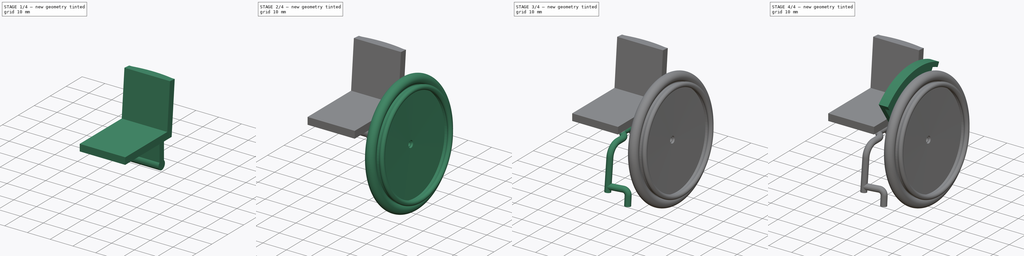
[diagram: build sequence overview — one tinted view per stage of 4, left to right]
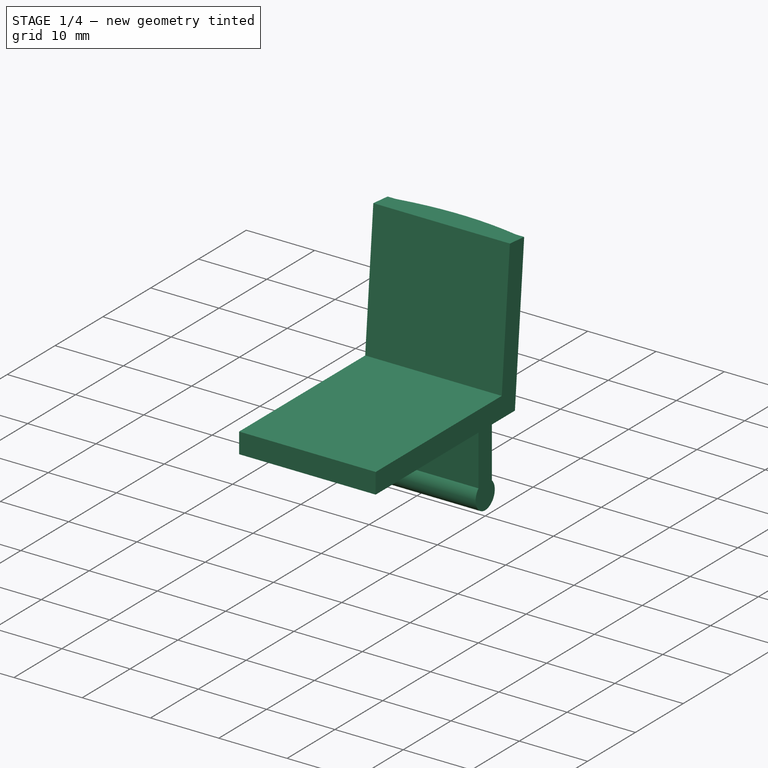
[diagram: stage 1 of 4 — iso view after this stage's code; geometry added in this stage tinted green]
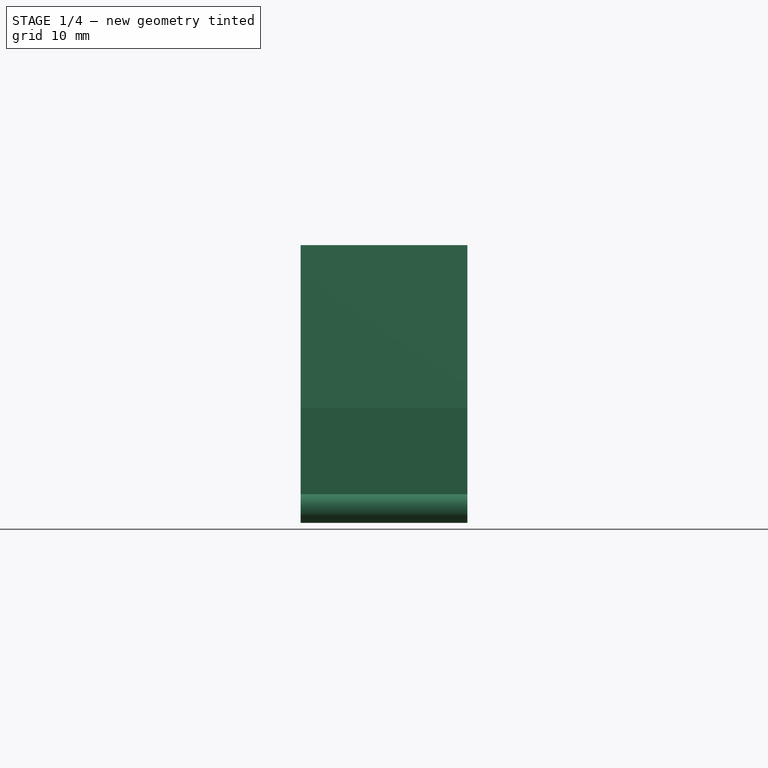
[diagram: stage 1 of 4 — front view after this stage's code; geometry added in this stage tinted green]
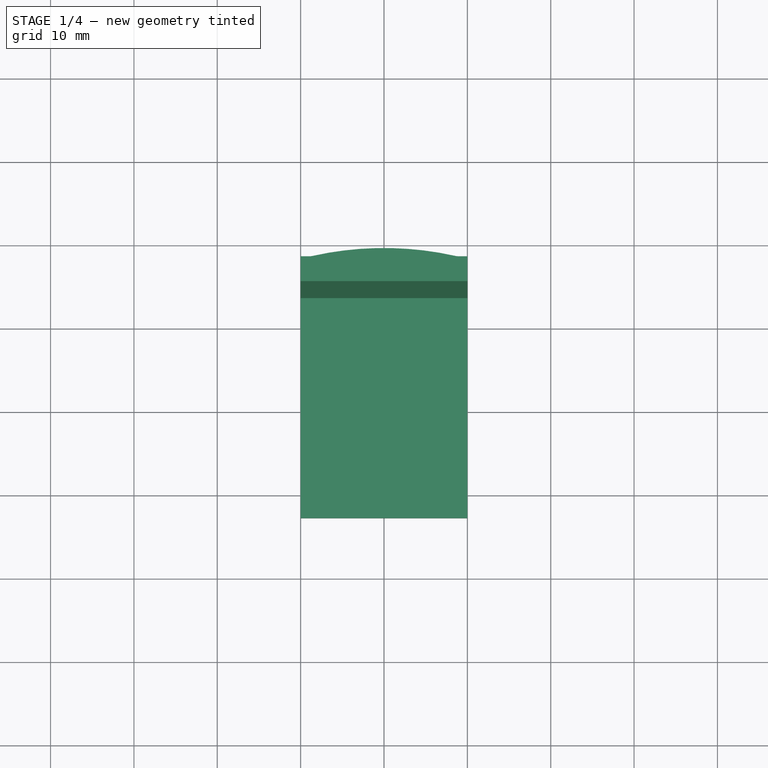
[diagram: stage 1 of 4 — top view after this stage's code; geometry added in this stage tinted green]
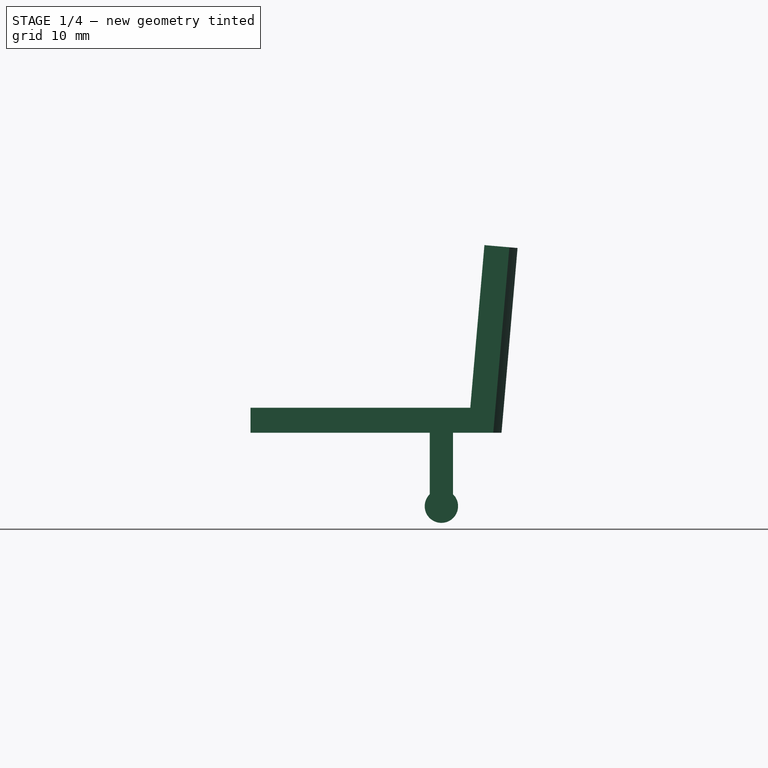
[diagram: stage 1 of 4 — right view after this stage's code; geometry added in this stage tinted green]
FCSTD DOCUMENT  (FreeCAD 2021.0205R23662 +3201 (Git))
Label: ToyWheelchair_02
License: All rights reserved
LicenseURL: http://en.wikipedia.org/wiki/All_rights_reserved
objects: Sketcher::SketchObject×15, PartDesign::Plane×8, PartDesign::Body×5, PartDesign::Pad×5, PartDesign::ShapeBinder×4, PartDesign::AdditivePipe×3, PartDesign::Revolution×1, Spreadsheet::Sheet×1, PartDesign::Point×1
note: 60 computed .brp shape members not serialized (recipe doc carries the construction recipe); baked Part::Feature solids carry a one-line shape summary decoded from their .brp

FEATURE [Spreadsheet::Sheet] Spreadsheet
  PythonMode = false
  cells = A1=SeatWidth; B1(SeatWidth)==20mm; A2=WheelDiameter; B2(WheelDiameter)==50mm; A3=TireDiameter; B3(TireDiameter)==2mm; A4=SeatHeight; B4(SeatHeight)==40mm; A5=WheelAngle; B5(WheelAngle)==5deg; A6=SeatAngle; B6(SeatAngle)==5deg; A7=TubeDiameter; B7(TubeDiameter)==2.5mm; A8=TubeCurveOffset; B8(TubeCurveOffset)==3mm; A9=AxleDiameter; B9(AxleDiameter)==4mm
FEATURE [PartDesign::ShapeBinder] ShapeBinder002
  Placement = pos=(0,0,0) rot=(0.57735,0.57735,0.57735;2.0944rad)
  Support = -> [Sketch]
  TraceSupport = false
FEATURE [Sketcher::SketchObject] Sketch005
  ExternalGeometry = -> [ShapeBinder002]
  FullyConstrained = false
  MapMode = 5
  Placement = pos=(0,0,0) rot=(0.57735,0.57735,0.57735;2.0944rad)
  Support = -> [YZ_Plane003]
  sketch-geometry (11):
    g0: ArcOfCircle CenterX=-5.5e-15 CenterY=24.9049 CenterZ=0 NormalX=0 NormalY=0 NormalZ=1 AngleXU=0 Radius=2 StartAngle=2.34619 EndAngle=7.07858
    g1: LineSegment StartX=6.47551 StartY=36.7159 StartZ=0 EndX=6.2142 EndY=33.7159 EndZ=0
    g2: LineSegment StartX=6.2142 StartY=33.7159 StartZ=0 EndX=1.4 EndY=33.7159 EndZ=0
    g3: LineSegment StartX=-22.9045 StartY=33.7159 StartZ=0 EndX=-22.9045 EndY=36.7159 EndZ=0
    g4: LineSegment StartX=1.4 StartY=26.3332 StartZ=0 EndX=1.4 EndY=33.7159 EndZ=0
    g5: LineSegment StartX=-1.4 StartY=26.3332 StartZ=0 EndX=-1.4 EndY=33.7159 EndZ=0
    g6: LineSegment StartX=-1.4 StartY=33.7159 StartZ=0 EndX=-22.9045 EndY=33.7159 EndZ=0
    g7: LineSegment StartX=-22.9045 StartY=36.7159 StartZ=0 EndX=3.46416 EndY=36.7159 EndZ=0
    g8: LineSegment StartX=6.47551 StartY=36.7159 StartZ=0 EndX=8.15211 EndY=55.9642 EndZ=0
    g9: LineSegment StartX=8.15211 StartY=55.9642 StartZ=0 EndX=5.16342 EndY=56.2245 EndZ=0
    g10: LineSegment StartX=5.16342 StartY=56.2245 StartZ=0 EndX=3.46416 EndY=36.7159 EndZ=0
  constraints (27):
    c: Coincident(g0,g-3)
    c: Symmetric(g0,g0,g-2)
    c: Diameter(g0) = 4
    c: DistanceX(g0,g0) = 2.8
    c: Coincident(g1,g2)
    c: Horizontal(g2)
    c: Coincident(g6,g3)
    c: Vertical(g3)
    c: Coincident(g4,g0)
    c: Vertical(g4)
    c: Coincident(g5,g0)
    c: Vertical(g5)
    c: Coincident(g2,g4)
    c: Coincident(g6,g5)
    c: Tangent(g2,g6)
    c: DistanceY(g1,g1) = 3
    c: Coincident(g7,g3)
    c: Horizontal(g7)
    c: Coincident(g8,g1)
    c: Coincident(g9,g8)
    c: Coincident(g10,g9)
    c: Coincident(g7,g10)
    c: DistanceY(g3,g3) = 3
    c: Equal(g3,g9)
    c: Perpendicular(g10,g9)
    c: Perpendicular(g8,g9)
    c: Parallel(g8,g1)
FEATURE [PartDesign::Pad] Pad001
  ClaimChildren = false
  Direction = (1,1,1)
  Fit = 0
  FitJoin = 0
  InnerFit = 0
  InnerFitJoin = 0
  InnerTaperAngle = 0
  InnerTaperAngleRev = 0
  Length = 20
  Length2 = 100
  Midplane = true
  NewSolid = false
  Placement = pos=(0,0,0) rot=(0.57735,0.57735,0.57735;2.0944rad)
  Profile = -> Sketch005
  Suppress = false
  Type = 0
  expr: Length = Spreadsheet.SeatWidth
FEATURE [PartDesign::Body] Body004  label="Body.Tube"
  AutoGroupSolids = false
  ExportMode = 0
  Group = -> [DatumPlane001,ShapeBinder003,Sketch006,DatumPlane002,DatumPlane003,Sketch007,Sketch008,AdditivePipe,DatumPlane004,Sketch010,DatumPoint,DatumPlane005,Sketch011,DatumPlane006,Sketch012,AdditivePipe001,AdditivePipe002]
  Origin = -> Origin004
  Tip = -> AdditivePipe002
  _ExportChildren = -> [DatumPlane001,ShapeBinder003,DatumPlane002,DatumPlane003,AdditivePipe,DatumPlane004,Sketch010,DatumPoint,DatumPlane005,DatumPlane006,AdditivePipe001,AdditivePipe002]
  _GroupVersion = 1
FEATURE [Sketcher::SketchObject] Sketch013
  ExternalGeometry = -> [Pad001]
  FullyConstrained = true
  MapMode = 5
  Placement = pos=(-1.97e-14,4.89935,56.2475) rot=(-0.043388,-0.043388,-0.998116;1.57268rad)
  Support = -> [Pad001]
  sketch-geometry (13):
    g0: LineSegment StartX=-3.26507 StartY=10 StartZ=0 EndX=-3.26507 EndY=9 EndZ=0
    g1: ArcOfCircle CenterX=-5.26507 CenterY=8.99998 CenterZ=0 NormalX=0 NormalY=0 NormalZ=1 AngleXU=0 Radius=2 StartAngle=6.06187 EndAngle=6.28319
    g2: LineSegment StartX=-3.26507 StartY=-10 StartZ=0 EndX=-3.26507 EndY=-9 EndZ=0
    g3: ArcOfCircle CenterX=-5.26507 CenterY=-9 CenterZ=0 NormalX=0 NormalY=0 NormalZ=1 AngleXU=0 Radius=2 StartAngle=2.00064e-08 EndAngle=0.221313
    g4: ArcOfCircle CenterX=34.7348 CenterY=-9.2494e-06 CenterZ=0 NormalX=0 NormalY=0 NormalZ=1 AngleXU=0 Radius=38.9999 StartAngle=2.92028 EndAngle=3.36291
    g5: GeomPoint [constr] X=-4.26507 Y=0 Z=0
    g6: GeomPoint [constr] X=-3.26507 Y=0 Z=0
    g7: Circle [constr] CenterX=-3.26507 CenterY=-10 CenterZ=0 NormalX=0 NormalY=0 NormalZ=1 AngleXU=0 Radius=1
    g8: Circle [constr] CenterX=-0.265068 CenterY=-10 CenterZ=0 NormalX=0 NormalY=0 NormalZ=1 AngleXU=0 Radius=1
    g9: BSplineCurve PolesCount=2 KnotsCount=2 Degree=1 IsPeriodic=0
    g10: GeomPoint [constr] X=-3.26507 Y=-10 Z=0
    g11: GeomPoint [constr] X=-0.265068 Y=-10 Z=0
    g12: LineSegment StartX=-3.26507 StartY=10 StartZ=0 EndX=-0.265068 EndY=10 EndZ=0
  constraints (31):
    c: Coincident(g0,g-4)
    c: PointOnObject(g0,g-4)
    c: Coincident(g1,g0)
    c: Tangent(g0,g1)
    c: Coincident(g2,g-4)
    c: PointOnObject(g2,g-4)
    c: Coincident(g3,g2)
    c: Tangent(g3,g-4)
    c: Coincident(g4,g3)
    c: Coincident(g4,g1)
    c: Distance(g0,g0) = 1
    c: Equal(g2,g0)
    c: Equal(g1,g3)
    c: Tangent(g4,g1)
    c: Tangent(g3,g4)
    c: Radius(g3) = 2
    c: PointOnObject(g5,g-1)
    c: PointOnObject(g5,g4)
    c: PointOnObject(g6,g-1)
    c: PointOnObject(g6,g-4)
    c: Distance(g6,g5) = 1
    c: Coincident(g9,g2)
    c: Weight(g7) = 1
    c: Equal(g7,g8)
    c: InternalAlignment(g7,g9)
    c: InternalAlignment(g8,g9)
    c: InternalAlignment(g10,g9)
    c: InternalAlignment(g11,g9)
    c: Coincident(g12,g0)
    c: Coincident(g12,g-3)
    c: Coincident(g9,g-3)
FEATURE [PartDesign::Pad] Pad003
  BaseFeature = -> Pad001
  ClaimChildren = false
  Direction = (1,1,1)
  Fit = 0
  FitJoin = 0
  InnerFit = 0
  InnerFitJoin = 0
  InnerTaperAngle = 0
  InnerTaperAngleRev = 0
  Length = 10
  Length2 = 100
  NewSolid = false
  Placement = pos=(0,0,0) rot=(0.57735,0.57735,0.57735;2.0944rad)
  Profile = -> Sketch013
  Suppress = false
  Type = 3
  UpToFace = -> Pad001 [Face3]
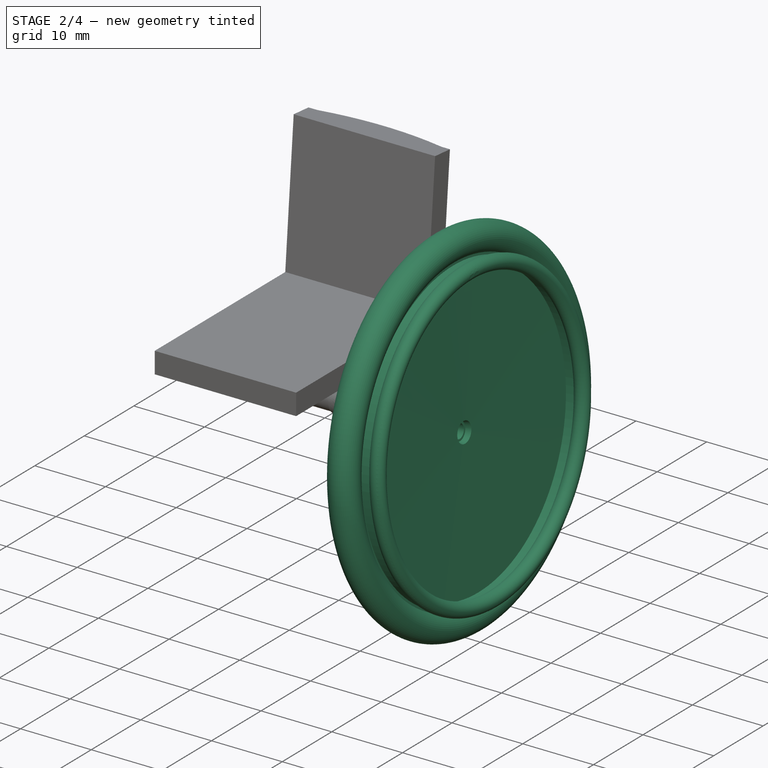
[diagram: stage 2 of 4 — iso view after this stage's code; geometry added in this stage tinted green]
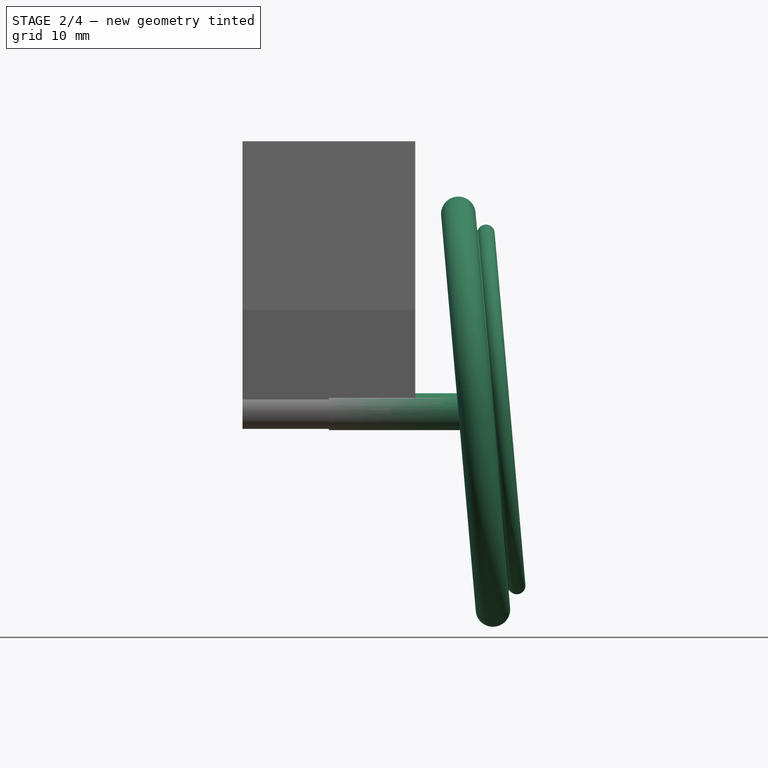
[diagram: stage 2 of 4 — front view after this stage's code; geometry added in this stage tinted green]
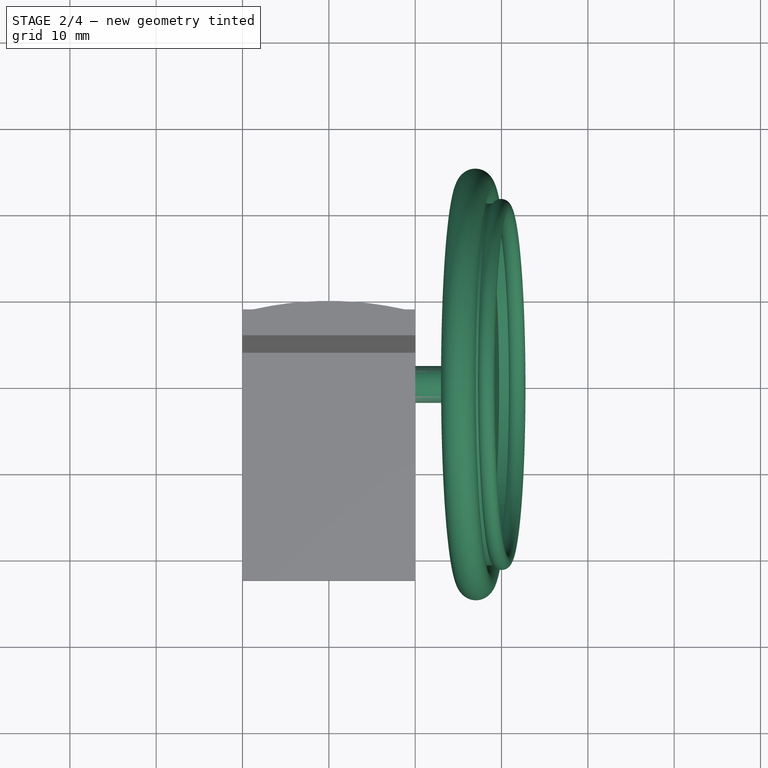
[diagram: stage 2 of 4 — top view after this stage's code; geometry added in this stage tinted green]
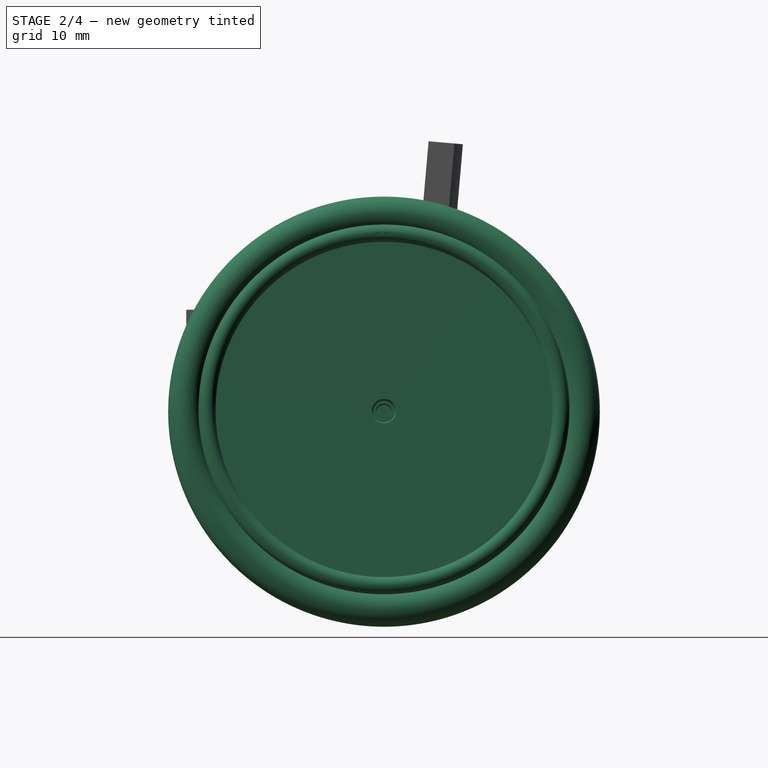
[diagram: stage 2 of 4 — right view after this stage's code; geometry added in this stage tinted green]
FEATURE [PartDesign::ShapeBinder] ShapeBinder001
  Placement = pos=(0,0,0) rot=(1,0,0;1.5708rad)
  Support = -> [Sketch001]
  TraceSupport = false
FEATURE [Sketcher::SketchObject] Sketch003
  ExternalGeometry = -> [ShapeBinder001]
  FullyConstrained = false
  MapMode = 5
  Placement = pos=(0,0,0) rot=(1,0,0;1.5708rad)
  Support = -> [XZ_Plane002]
  sketch-geometry (20):
    g0: Circle [constr] CenterX=17 CenterY=24.9049 CenterZ=0 NormalX=0 NormalY=0 NormalZ=1 AngleXU=0 Radius=25
    g1: ArcOfCircle CenterX=14.9954 CenterY=47.8173 CenterZ=0 NormalX=0 NormalY=0 NormalZ=1 AngleXU=0 Radius=2 StartAngle=5.32325 EndAngle=10.5592
    g2: LineSegment StartX=15.3663 StartY=26.368 StartZ=0 EndX=16.1134 EndY=26.4334 EndZ=0
    g3: LineSegment [constr] StartX=18.3548 StartY=26.6295 StartZ=0 EndX=18.4943 EndY=25.0356 EndZ=0
    g4: LineSegment [constr] StartX=18.4943 StartY=25.0356 StartZ=0 EndX=15.5057 EndY=24.7741 EndZ=0
    g5: LineSegment [constr] StartX=15.5057 StartY=24.7741 StartZ=0 EndX=15.3663 EndY=26.368 EndZ=0
    g6: LineSegment StartX=16.1426 StartY=46.179 StartZ=0 EndX=16.1661 EndY=45.8642 EndZ=0
    g7: LineSegment StartX=14.1502 StartY=46.0047 StartZ=0 EndX=16.1134 EndY=26.4334 EndZ=0
    g8: ArcOfCircle CenterX=18.2028 CenterY=45.5778 CenterZ=0 NormalX=0 NormalY=0 NormalZ=1 AngleXU=0 Radius=1 StartAngle=3.71006 EndAngle=9.03084
    g9: LineSegment [constr] StartX=18.2028 StartY=45.5778 StartZ=0 EndX=15.2142 EndY=45.3163 EndZ=0
    g10: LineSegment StartX=17.2794 StartY=45.9616 StartZ=0 EndX=16.1661 EndY=45.8642 EndZ=0
    g11: LineSegment StartX=17.3601 StartY=45.0395 StartZ=0 EndX=16.235 EndY=44.941 EndZ=0
    g12: LineSegment StartX=16.235 StartY=44.941 StartZ=0 EndX=17.6077 EndY=26.5641 EndZ=0
    g13: LineSegment [constr] StartX=16.1661 StartY=45.8642 StartZ=0 EndX=16.235 EndY=44.941 EndZ=0
    g14: LineSegment StartX=16.8909 StartY=26.1514 StartZ=0 EndX=16.916 EndY=25.8649 EndZ=0
    g15: LineSegment StartX=16.916 StartY=25.8649 StartZ=0 EndX=15.4261 EndY=25.6845 EndZ=0
    g16: LineSegment StartX=15.4261 StartY=25.6845 StartZ=0 EndX=15.3663 EndY=26.368 EndZ=0
    g17: LineSegment StartX=16.8909 StartY=26.1514 StartZ=0 EndX=17.6214 EndY=26.3806 EndZ=0
    g18: LineSegment StartX=17.6077 StartY=26.5641 StartZ=0 EndX=17.6214 EndY=26.3806 EndZ=0
    g19: LineSegment [constr] StartX=15.3663 StartY=26.368 StartZ=0 EndX=18.3548 EndY=26.6295 EndZ=0
  constraints (54):
    c: PointOnObject(g0,g-3)
    c: PointOnObject(g-3,g0)
    c: PointOnObject(g-3,g0)
    c: PointOnObject(g-3,g1)
    c: Coincident(g3,g4)
    c: Coincident(g4,g5)
    c: Coincident(g5,g2)
    c: PointOnObject(g0,g4)
    c: Perpendicular(g5,g4)
    c: Perpendicular(g-3,g4)
    c: Perpendicular(g3,g4)
    c: Symmetric(g2,g3,g-3)
    c: Symmetric(g7,g12,g-3)
    c: Symmetric(g6,g7,g-3)
    c: Coincident(g1,g6)
    c: Coincident(g1,g7)
    c: PointOnObject(g2,g7)
    c: Diameter(g1) = 4
    c: Distance(g1,g1) = 2
    c: Distance(g2,g12) = 1.5
    c: Distance(g2,g3) = 3
    c: Distance(g3) = 1.6
    c: Diameter(g8) = 2
    c: Coincident(g9,g8)
    c: PointOnObject(g9,g-3)
    c: Perpendicular(g-3,g9)
    c: Distance(g9) = 3
    c: Parallel(g9,g10)
    c: Parallel(g9,g11)
    c: Symmetric(g11,g10,g9)
    c: Coincident(g8,g10)
    c: PointOnObject(g8,g11)
    c: Coincident(g12,g11)
    c: Tangent(g6,g12)
    c: Coincident(g6,g10)
    c: Coincident(g13,g6)
    c: Coincident(g13,g11)
    c: PointOnObject(g14,g-3)
    c: PointOnObject(g14,g-3)
    c: Coincident(g14,g15)
    c: PointOnObject(g15,g5)
    c: Coincident(g15,g16)
    c: Coincident(g16,g2)
    c: Distance(g4,g15) = 0.913816
    c: Distance(g14,g0) = 0.963725
    c: Distance(g0,g14) = 1.25134
    c: Coincident(g17,g14)
    c: Coincident(g18,g12)
    c: Coincident(g18,g17)
    c: Parallel(g12,g18)
    c: Coincident(g19,g2)
    c: Coincident(g19,g3)
    c: PointOnObject(g12,g19)
    c: PointOnObject(g2,g19)
FEATURE [Sketcher::SketchObject] Sketch004
  ExternalGeometry = -> [ShapeBinder001]
  FullyConstrained = true
  MapMode = 5
  Placement = pos=(0,0,0) rot=(1,0,0;1.5708rad)
  Support = -> [XZ_Plane002]
  sketch-geometry (3):
    g0: Circle [constr] CenterX=17 CenterY=24.9049 CenterZ=0 NormalX=0 NormalY=0 NormalZ=1 AngleXU=0 Radius=25
    g1: LineSegment StartX=17 StartY=24.9049 StartZ=0 EndX=41.9049 EndY=27.0838 EndZ=0
    g2: LineSegment StartX=17 StartY=24.9049 StartZ=0 EndX=-7.90487 EndY=22.726 EndZ=0
  constraints (9):
    c: PointOnObject(g0,g-3)
    c: PointOnObject(g-3,g0)
    c: PointOnObject(g-3,g0)
    c: Coincident(g1,g0)
    c: PointOnObject(g1,g0)
    c: Perpendicular(g-3,g1)
    c: Coincident(g2,g1)
    c: PointOnObject(g2,g0)
    c: Parallel(g1,g2)
FEATURE [PartDesign::Revolution] Revolution
  Angle = 360
  Axis = (0.996195,0,0.0871557)
  Base = (17,-5.5e-15,24.9049)
  ClaimChildren = false
  Fit = 0
  FitJoin = 0
  InnerFit = 0
  InnerFitJoin = 0
  NewSolid = false
  Placement = pos=(0,0,0) rot=(1,0,0;1.5708rad)
  Profile = -> Sketch003
  ReferenceAxis = -> Sketch004 [Edge2]
  Reversed = true
  Suppress = false
FEATURE [PartDesign::Plane] DatumPlane007
  Length = 50.4782
  MapMode = 5
  MinimumLength = 10
  MinimumWidth = 10
  Placement = pos=(17.5389,-3e-16,1.53446) rot=(0.737277,0,-0.67559;3.14159rad)
  ResizeMode = 0
  Support = -> [Revolution]
  Width = 49.9872
FEATURE [PartDesign::Body] Body002  label="Body.Wheel"
  AutoGroupSolids = false
  ExportMode = 0
  Group = -> [ShapeBinder001,Sketch003,Sketch004,Revolution,DatumPlane007]
  Origin = -> Origin002
  Tip = -> Revolution
  _ExportChildren = -> [ShapeBinder001,Sketch004,Revolution,DatumPlane007]
  _GroupVersion = 1
FEATURE [Sketcher::SketchObject] Sketch014
  ExternalGeometry = -> [ShapeBinder002]
  FullyConstrained = true
  MapMode = 5
  Placement = pos=(0,0,0) rot=(0.57735,0.57735,0.57735;2.0944rad)
  Support = -> [YZ_Plane003]
  expr: Constraints[1] = Spreadsheet.AxleDiameter
  sketch-geometry (1):
    g0: Circle CenterX=0 CenterY=24.9049 CenterZ=0 NormalX=0 NormalY=0 NormalZ=1 AngleXU=0 Radius=2
  constraints (2):
    c: Coincident(g0,g-3)
    c: Diameter(g0) = 4
FEATURE [PartDesign::Pad] Pad004
  BaseFeature = -> Pad003
  ClaimChildren = false
  Direction = (1,1,1)
  Fit = 0
  FitJoin = 0
  InnerFit = 0
  InnerFitJoin = 0
  InnerTaperAngle = 0
  InnerTaperAngleRev = 0
  Length = 10
  Length2 = 100
  NewSolid = false
  Placement = pos=(0,0,0) rot=(0.57735,0.57735,0.57735;2.0944rad)
  Profile = -> Sketch014
  Suppress = false
  Type = 3
  UpToFace = -> Sketch014
FEATURE [PartDesign::Body] Body003  label="Body.AxleSeat"
  AutoGroupSolids = false
  ExportMode = 0
  Group = -> [ShapeBinder002,Sketch005,Pad001,Sketch013,Pad003,Sketch014,Pad004]
  Origin = -> Origin003
  Tip = -> Pad004
  _ExportChildren = -> [ShapeBinder002,Pad001,Pad003,Pad004]
  _GroupVersion = 1
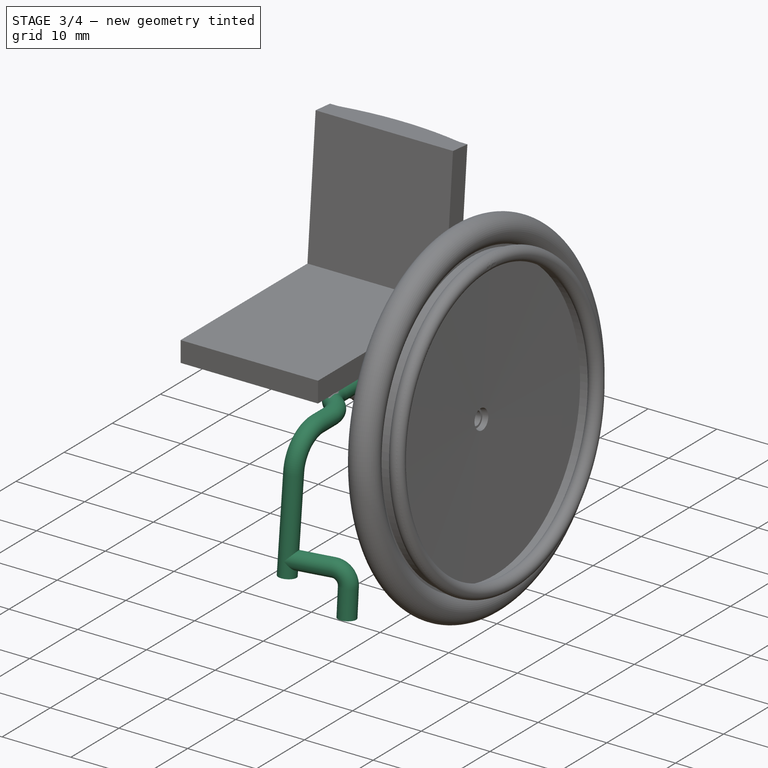
[diagram: stage 3 of 4 — iso view after this stage's code; geometry added in this stage tinted green]
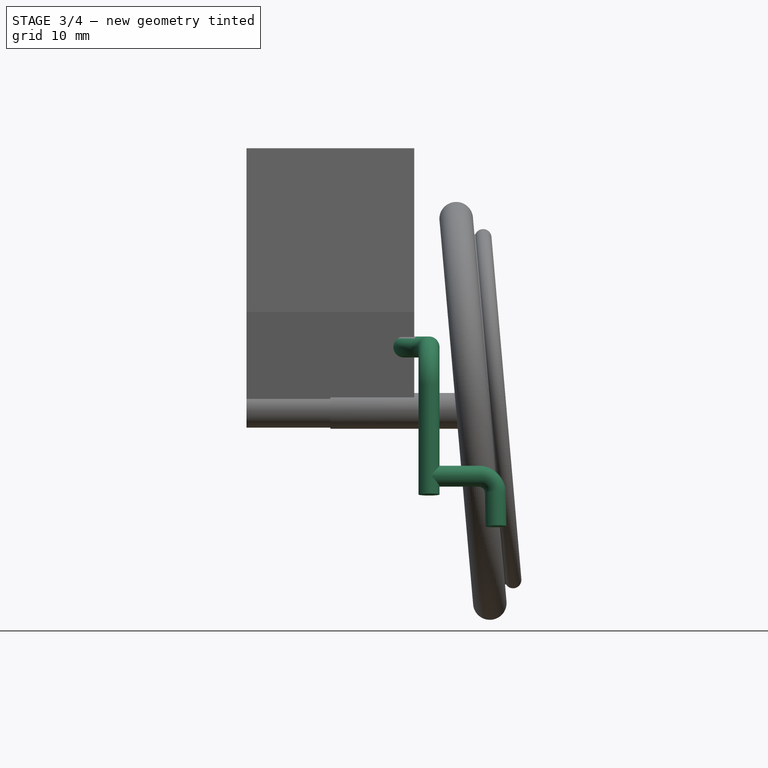
[diagram: stage 3 of 4 — front view after this stage's code; geometry added in this stage tinted green]
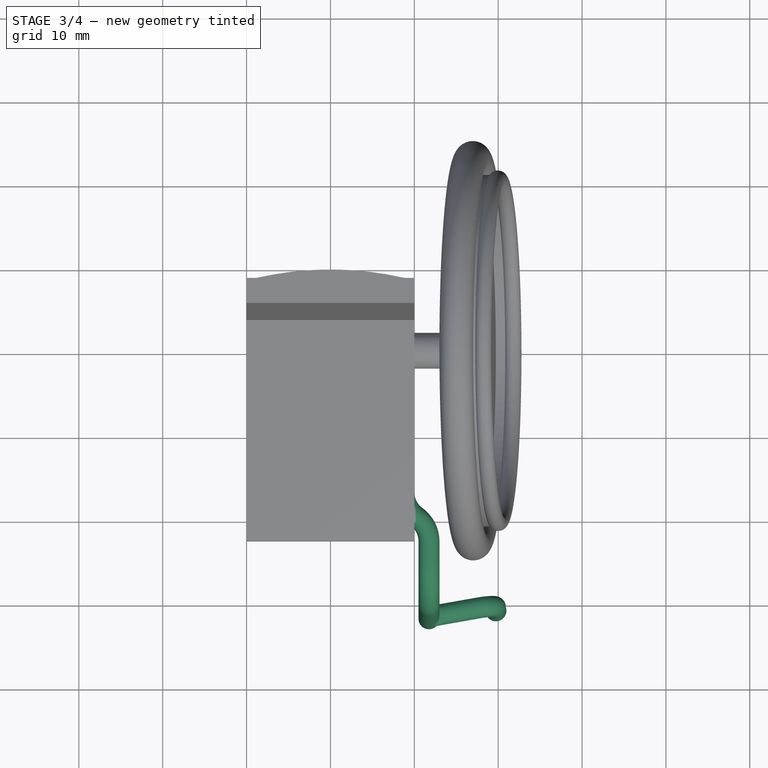
[diagram: stage 3 of 4 — top view after this stage's code; geometry added in this stage tinted green]
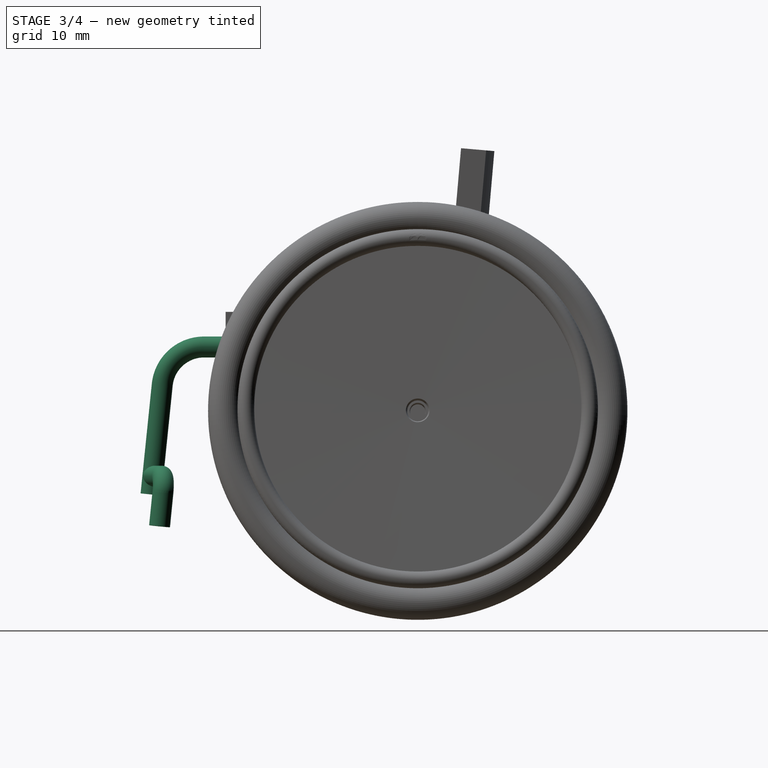
[diagram: stage 3 of 4 — right view after this stage's code; geometry added in this stage tinted green]
FEATURE [PartDesign::Body] Body001  label="Body.SidePanel"
  AutoGroupSolids = false
  ExportMode = 0
  Group = -> [ShapeBinder,DatumPlane,Sketch002,Pad,Sketch009,Pad002]
  Origin = -> Origin001
  Tip = -> Pad002
  _ExportChildren = -> [ShapeBinder,DatumPlane,Pad,Pad002]
  _GroupVersion = 1
FEATURE [PartDesign::Plane] DatumPlane004
  Length = 11.75
  MapMode = 1
  MinimumLength = 10
  MinimumWidth = 10
  Placement = pos=(11.75,-31.5781,17.1179) rot=(0,0,1;0rad)
  ResizeMode = 0
  Support = -> [Sketch006]
  Width = 31.5781
FEATURE [Sketcher::SketchObject] Sketch010
  FullyConstrained = true
  MapMode = 5
  Placement = pos=(11.75,-31.5781,17.1179) rot=(0,0,1;0rad)
  Support = -> [DatumPlane004]
  sketch-geometry (1):
    g0: LineSegment StartX=0 StartY=0 StartZ=0 EndX=4.92404 EndY=0.868241 EndZ=0
  constraints (3):
    c: Coincident(g0,g-1)
    c: Angle(g-1,g0) = 0.174533
    c: Distance(g0) = 5
FEATURE [PartDesign::Point] DatumPoint
  AttacherType = Attacher::AttachEnginePoint
  MapMode = 37
  Placement = pos=(11.75,-31.5781,17.1179) rot=(0,0,1;0rad)
  Support = -> [Sketch006]
FEATURE [PartDesign::Plane] DatumPlane005
  Length = 17.055
  MapMode = 13
  MinimumLength = 10
  MinimumWidth = 10
  Placement = pos=(13.3913,-30.916,20.7556) rot=(0.991599,0.086754,0.095947;1.47864rad)
  ResizeMode = 0
  Support = -> [Sketch010,Sketch006]
  Width = 20.6876
FEATURE [Sketcher::SketchObject] Sketch011
  ExternalGeometry = -> [Sketch010]
  FullyConstrained = true
  MapMode = 5
  Placement = pos=(13.3913,-30.916,20.7556) rot=(0.991599,0.086754,0.095947;1.47864rad)
  Support = -> [DatumPlane005]
  sketch-geometry (3):
    g0: LineSegment StartX=-1.73138 StartY=-3.65616 StartZ=0 EndX=4.26863 EndY=-3.65616 EndZ=0
    g1: LineSegment StartX=6.26862 StartY=-5.65616 StartZ=0 EndX=6.26862 EndY=-9.65616 EndZ=0
    g2: ArcOfCircle CenterX=4.26862 CenterY=-5.65616 CenterZ=0 NormalX=0 NormalY=0 NormalZ=1 AngleXU=0 Radius=2 StartAngle=4.27302e-08 EndAngle=1.57079
  constraints (10):
    c: Coincident(g0,g-3)
    c: PointOnObject(g0,g-3)
    c: Vertical(g1)
    c: Coincident(g2,g0)
    c: Coincident(g2,g1)
    c: Tangent(g2,g1)
    c: Radius(g2) = 2
    c: DistanceY(g1,g0) = 6
    c: DistanceX(g0,g1) = 8
    c: Tangent(g2,g0)
FEATURE [PartDesign::Plane] DatumPlane006
  Length = 10
  MapMode = 7
  MinimumLength = 10
  MinimumWidth = 10
  Placement = pos=(11.75,-31.5781,17.1179) rot=(0.6444,-0.540716,-0.540716;1.99673rad)
  ResizeMode = 0
  Support = -> [Sketch010]
  Width = 10
FEATURE [Sketcher::SketchObject] Sketch012
  FullyConstrained = true
  MapMode = 5
  Placement = pos=(11.75,-31.5781,17.1179) rot=(0.6444,-0.540716,-0.540716;1.99673rad)
  Support = -> [DatumPlane006]
  expr: Constraints[1] = Spreadsheet.TubeDiameter
  sketch-geometry (1):
    g0: Circle CenterX=0 CenterY=0 CenterZ=0 NormalX=0 NormalY=0 NormalZ=1 AngleXU=0 Radius=1.25
  constraints (2):
    c: Coincident(g0,g-1)
    c: Diameter(g0) = 2.5
FEATURE [PartDesign::AdditivePipe] AdditivePipe
  AuxilleryCurvelinear = true
  AuxillerySpineTangent = false
  Binormal = (0,0,0)
  ClaimChildren = false
  Fit = 0
  FitJoin = 0
  InnerFit = 0
  InnerFitJoin = 0
  Mode = 0
  NewSolid = false
  Placement = pos=(11.75,-23.8778,32.5214) rot=(0.57735,-0.57735,0.57735;2.0944rad)
  Profile = -> Sketch007
  Spine = -> Sketch008 [Edge1,Edge2,Edge3,Edge4]
  SpineTangent = false
  Suppress = false
  Transformation = 0
  Transition = 0
FEATURE [PartDesign::AdditivePipe] AdditivePipe001
  AuxilleryCurvelinear = true
  AuxillerySpineTangent = false
  BaseFeature = -> AdditivePipe
  Binormal = (0,0,0)
  ClaimChildren = false
  Fit = 0
  FitJoin = 0
  InnerFit = 0
  InnerFitJoin = 0
  Mode = 0
  NewSolid = false
  Placement = pos=(11.75,-23.8778,32.5214) rot=(0.57735,-0.57735,0.57735;2.0944rad)
  Profile = -> Sketch007
  Spine = -> Sketch006 [Edge4,Edge3,Edge2,Edge1]
  SpineTangent = false
  Suppress = false
  Transformation = 0
  Transition = 0
FEATURE [PartDesign::AdditivePipe] AdditivePipe002
  AuxilleryCurvelinear = true
  AuxillerySpineTangent = false
  BaseFeature = -> AdditivePipe001
  Binormal = (0,0,0)
  ClaimChildren = false
  Fit = 0
  FitJoin = 0
  InnerFit = 0
  InnerFitJoin = 0
  Mode = 0
  NewSolid = false
  Placement = pos=(11.75,-23.8778,32.5214) rot=(0.57735,-0.57735,0.57735;2.0944rad)
  Profile = -> Sketch012
  Spine = -> Sketch011 [Edge1,Edge2,Edge3]
  SpineTangent = false
  Suppress = false
  Transformation = 0
  Transition = 0
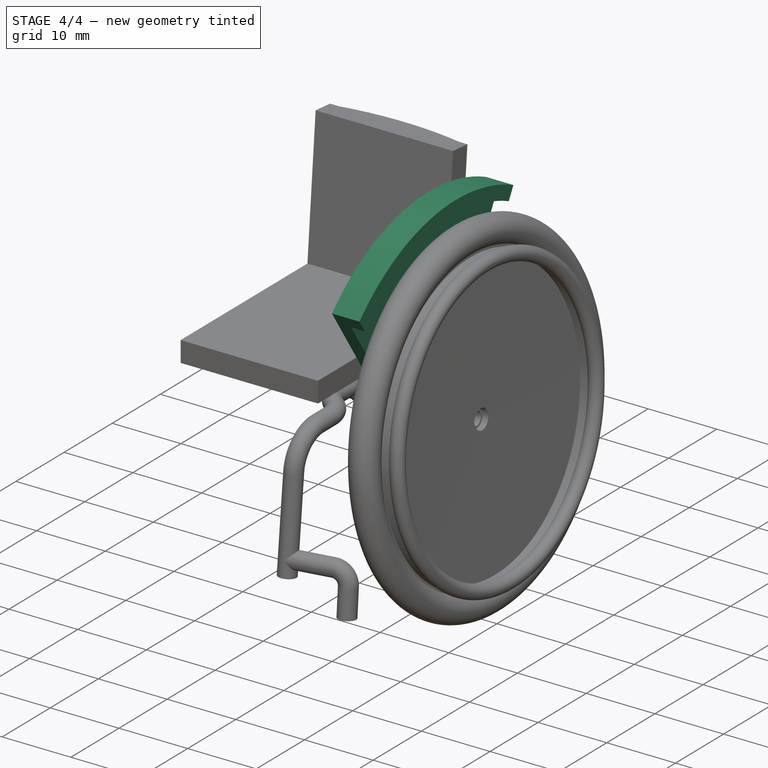
[diagram: stage 4 of 4 — iso view after this stage's code; geometry added in this stage tinted green]
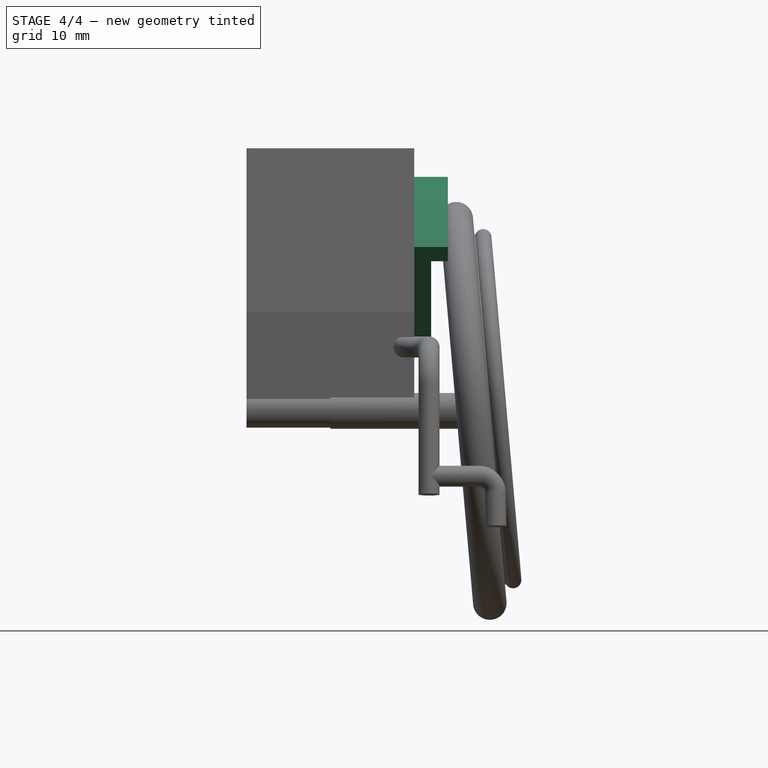
[diagram: stage 4 of 4 — front view after this stage's code; geometry added in this stage tinted green]
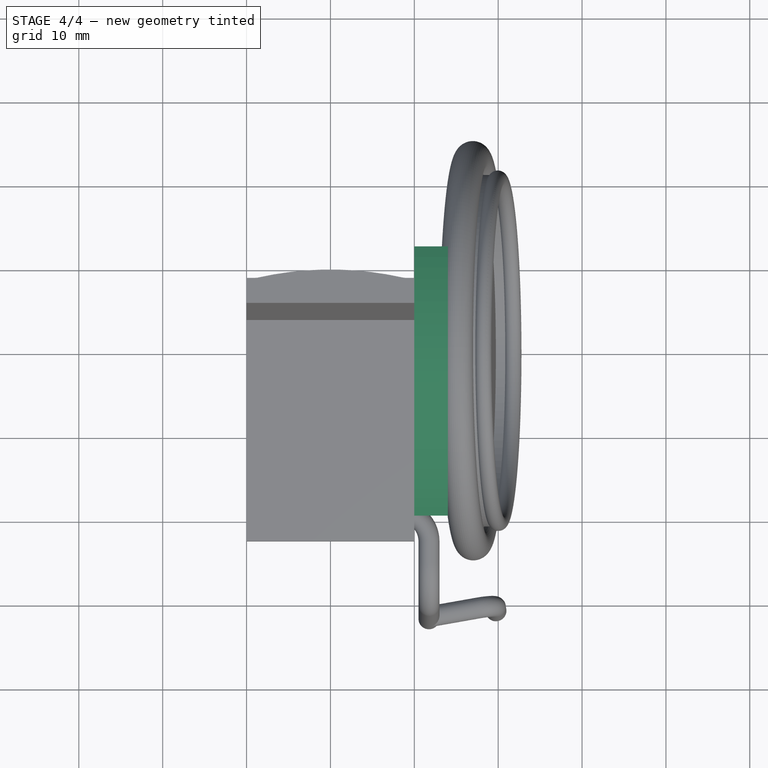
[diagram: stage 4 of 4 — top view after this stage's code; geometry added in this stage tinted green]
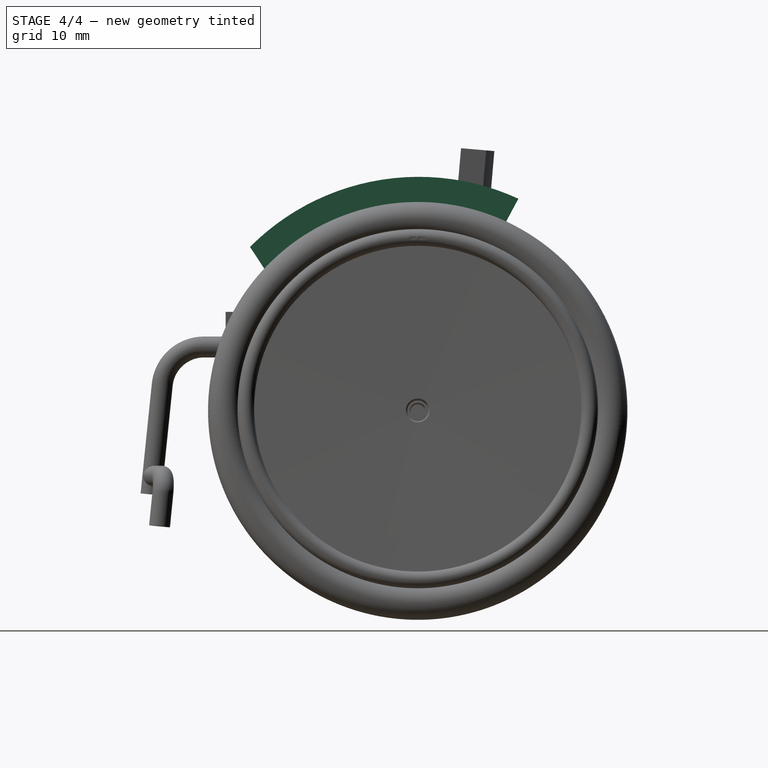
[diagram: stage 4 of 4 — right view after this stage's code; geometry added in this stage tinted green]
FEATURE [Sketcher::SketchObject] Sketch  label="MASTER.Sketch"
  FullyConstrained = false
  MapMode = 5
  Placement = pos=(0,0,0) rot=(0.57735,0.57735,0.57735;2.0944rad)
  Support = -> [YZ_Plane]
  expr: Constraints[29] = cos(Spreadsheet.WheelAngle) * Spreadsheet.WheelDiameter
  expr: Constraints[36] = Spreadsheet.WheelDiameter
  sketch-geometry (15):
    g0: Circle CenterX=0 CenterY=24.9049 CenterZ=0 NormalX=0 NormalY=0 NormalZ=1 AngleXU=0 Radius=2.63162
    g1: LineSegment StartX=-6.93783 StartY=34.5214 StartZ=0 EndX=28.2394 EndY=34.5214 EndZ=0
    g2: LineSegment StartX=0 StartY=32.5214 StartZ=0 EndX=-25.4861 EndY=32.5214 EndZ=0
    g3: LineSegment StartX=-30.46 StartY=28.031 StartZ=0 EndX=-32 EndY=13 EndZ=0
    g4: LineSegment StartX=-32 StartY=13 StartZ=0 EndX=-29 EndY=5 EndZ=0
    g5: Circle CenterX=-29 CenterY=5 CenterZ=0 NormalX=0 NormalY=0 NormalZ=1 AngleXU=0 Radius=5
    g6: LineSegment [constr] StartX=-29 StartY=5 StartZ=0 EndX=-29 EndY=12.0907 EndZ=0
    g7: ArcOfCircle CenterX=-25.4861 CenterY=27.5214 CenterZ=0 NormalX=0 NormalY=0 NormalZ=1 AngleXU=0 Radius=5 StartAngle=1.5708 EndAngle=3.0395
    g8: LineSegment [constr] StartX=-25.4861 StartY=32.5214 StartZ=0 EndX=-32.1716 EndY=32.5214 EndZ=0
    g9: LineSegment [constr] StartX=-30.46 StartY=28.031 StartZ=0 EndX=-29.1955 EndY=40.3737 EndZ=0
    g10: GeomPoint [constr] X=-30 Y=32.5214 Z=0
    g11: LineSegment StartX=0 StartY=0 StartZ=0 EndX=0 EndY=24.9049 EndZ=0
    g12: LineSegment StartX=0 StartY=24.9049 StartZ=0 EndX=0 EndY=49.8097 EndZ=0
    g13: LineSegment StartX=-25 StartY=24.9049 StartZ=0 EndX=0 EndY=24.9049 EndZ=0
    g14: LineSegment StartX=0 StartY=24.9049 StartZ=0 EndX=25 EndY=24.9049 EndZ=0
  constraints (37):
    c: Horizontal(g1)
    c: DistanceY(g-1,g1) = 34.5214
    c: Horizontal(g2)
    c: Coincident(g4,g3)
    c: Coincident(g5,g4)
    c: Tangent(g5,g-1)
    c: Diameter(g5) = 10
    c: Coincident(g6,g4)
    c: Vertical(g6)
    c: DistanceY(g4,g3) = 8
    c: DistanceX(g3,g4) = 3
    c: Tangent(g2,g7) = -1.5708
    c: Tangent(g3,g7) = -1.5708
    c: Radius(g7) = 5
    c: DistanceY(g2,g1) = 2
    c: PointOnObject(g2,g-2)
    c: Coincident(g8,g2)
    c: Horizontal(g8)
    c: Coincident(g9,g3)
    c: Tangent(g9,g7)
    c: PointOnObject(g10,g8)
    c: PointOnObject(g10,g9)
    c: DistanceX(g10,g-1) = 30
    c: DistanceX(g3,g10) = 2
    c: Coincident(g11,g-1)
    c: Coincident(g11,g0)
    c: Vertical(g11)
    c: Coincident(g12,g0)
    c: PointOnObject(g12,g-2)
    c: Distance(g11,g12) = 49.8097
    c: Coincident(g13,g0)
    c: Horizontal(g13)
    c: Coincident(g14,g0)
    c: Horizontal(g14)
    c: Equal(g12,g11)
    c: Equal(g13,g14)
    c: Distance(g13,g14) = 50
FEATURE [Sketcher::SketchObject] Sketch001  label="Sketch.Wheel.Angle"
  FullyConstrained = true
  MapMode = 5
  Placement = pos=(0,0,0) rot=(1,0,0;1.5708rad)
  Support = -> [XZ_Plane]
  expr: Constraints[4] = Spreadsheet.SeatWidth / 2 + 7
  expr: Constraints[6] = 50mm
  sketch-geometry (3):
    g0: LineSegment StartX=19.1789 StartY=0 StartZ=0 EndX=14.8211 EndY=49.8097 EndZ=0
    g1: Circle [constr] CenterX=17 CenterY=24.9049 CenterZ=0 NormalX=0 NormalY=0 NormalZ=1 AngleXU=0 Radius=25
    g2: GeomPoint [constr] X=14.8211 Y=49.8097 Z=0
  constraints (8):
    c: PointOnObject(g0,g-1)
    c: PointOnObject(g1,g0)
    c: PointOnObject(g0,g1)
    c: PointOnObject(g0,g1)
    c: DistanceX(g-1,g1) = 17
    c: Angle(g-2,g0) = 0.0872665
    c: Distance(g0) = 50
    c: Coincident(g2,g0)
FEATURE [PartDesign::Body] Body  label="MASTER.Body"
  AutoGroupSolids = false
  ExportMode = 0
  Group = -> [Sketch001,Sketch]
  Origin = -> Origin
  _ExportChildren = -> [Sketch001,Sketch]
  _GroupVersion = 1
FEATURE [PartDesign::ShapeBinder] ShapeBinder
  Placement = pos=(0,0,0) rot=(0.57735,0.57735,0.57735;2.0944rad)
  Support = -> [Sketch]
  TraceSupport = false
FEATURE [PartDesign::Plane] DatumPlane
  AttachmentOffset = pos=(0,0,10) rot=(0,0,1;0rad)
  Length = 10
  MapMode = 5
  MinimumLength = 10
  MinimumWidth = 10
  Placement = pos=(10,-2.2e-15,2.2e-15) rot=(0.57735,0.57735,0.57735;2.0944rad)
  ResizeMode = 0
  Support = -> [YZ_Plane001]
  Width = 10
  expr: .AttachmentOffset.Base.z = Spreadsheet.SeatWidth / 2
FEATURE [Sketcher::SketchObject] Sketch002
  ExternalGeometry = -> [ShapeBinder]
  FullyConstrained = false
  MapMode = 5
  Placement = pos=(10,-2.2e-15,2.2e-15) rot=(0.57735,0.57735,0.57735;2.0944rad)
  Support = -> [DatumPlane]
  expr: Constraints[10] = Spreadsheet.WheelDiameter
  sketch-geometry (10):
    g0: LineSegment StartX=-20 StartY=44.4492 StartZ=0 EndX=-12.3537 EndY=32.8577 EndZ=0
    g1: LineSegment StartX=-12.3537 StartY=32.8577 StartZ=0 EndX=2.70695 EndY=32.8577 EndZ=0
    g2: LineSegment StartX=2.70695 StartY=32.8577 StartZ=0 EndX=12 EndY=50.201 EndZ=0
    g3: ArcOfCircle CenterX=0.114642 CenterY=24.4333 CenterZ=0 NormalX=0 NormalY=0 NormalZ=1 AngleXU=0 Radius=28.3767 StartAngle=1.13863 EndAngle=2.35865
    g4: GeomPoint [constr] X=10.3723 Y=47.1634 Z=0
    g5: GeomPoint [constr] X=0 Y=52.8097 Z=0
    g6: Circle [constr] CenterX=1.1e-15 CenterY=24.9049 CenterZ=0 NormalX=0 NormalY=0 NormalZ=1 AngleXU=0 Radius=25
    g7: GeomPoint [constr] X=-18.3252 Y=41.9103 Z=0
    g8: Circle [constr] CenterX=-19.174 CenterY=43.1971 CenterZ=0 NormalX=0 NormalY=0 NormalZ=1 AngleXU=0 Radius=1.5
    g9: Circle [constr] CenterX=11.2916 CenterY=48.8788 CenterZ=0 NormalX=0 NormalY=0 NormalZ=1 AngleXU=0 Radius=1.5
  constraints (23):
    c: Coincident(g0,g1)
    c: Horizontal(g1)
    c: Coincident(g1,g2)
    c: Coincident(g3,g2)
    c: Coincident(g3,g0)
    c: PointOnObject(g4,g2)
    c: PointOnObject(g5,g-2)
    c: PointOnObject(g5,g3)
    c: Distance(g-3,g5) = 3
    c: Coincident(g6,g-3)
    c: Diameter(g6) = 50
    c: PointOnObject(g7,g6)
    c: PointOnObject(g7,g0)
    c: DistanceX(g5,g2) = 12
    c: DistanceX(g0,g5) = 20
    c: PointOnObject(g8,g0)
    c: PointOnObject(g0,g8)
    c: PointOnObject(g9,g2)
    c: PointOnObject(g2,g9)
    c: Tangent(g9,g6)
    c: Tangent(g8,g6)
    c: Equal(g8,g9)
    c: Diameter(g9) = 3
FEATURE [PartDesign::Pad] Pad
  ClaimChildren = false
  Direction = (1,1,1)
  Fit = 0
  FitJoin = 0
  InnerFit = 0
  InnerFitJoin = 0
  InnerTaperAngle = 0
  InnerTaperAngleRev = 0
  Length = 2
  Length2 = 100
  NewSolid = false
  Placement = pos=(10,-2.2e-15,2.2e-15) rot=(0.57735,0.57735,0.57735;2.0944rad)
  Profile = -> Sketch002
  Suppress = false
  Type = 0
FEATURE [PartDesign::Plane] DatumPlane001
  AttachmentOffset = pos=(0,0,11.75) rot=(0,0,1;0rad)
  Length = 10
  MapMode = 5
  MinimumLength = 10
  MinimumWidth = 10
  Placement = pos=(11.75,-2.6e-15,2.6e-15) rot=(0.57735,0.57735,0.57735;2.0944rad)
  ResizeMode = 0
  Support = -> [YZ_Plane004]
  Width = 10
  expr: .AttachmentOffset.Base.z = Spreadsheet.SeatWidth / 2 + Spreadsheet.TubeCurveOffset - Spreadsheet.TubeDiameter / 2
FEATURE [PartDesign::ShapeBinder] ShapeBinder003
  Placement = pos=(0,0,0) rot=(0.57735,0.57735,0.57735;2.0944rad)
  Support = -> [Sketch]
  TraceSupport = false
FEATURE [Sketcher::SketchObject] Sketch006  label="Sketch.TubeBottom"
  ExternalGeometry = -> [ShapeBinder003]
  FullyConstrained = false
  MapMode = 5
  Placement = pos=(11.75,-2.6e-15,2.6e-15) rot=(0.57735,0.57735,0.57735;2.0944rad)
  Support = -> [DatumPlane001]
  sketch-geometry (3):
    g0: LineSegment StartX=-25.4861 StartY=32.5214 StartZ=0 EndX=-23.8778 EndY=32.5214 EndZ=0
    g1: LineSegment StartX=-30.46 StartY=28.031 StartZ=0 EndX=-31.5781 EndY=17.1179 EndZ=0
    g2: LineSegment StartX=-31.5781 StartY=17.1179 StartZ=0 EndX=-31.8014 EndY=14.9385 EndZ=0
  constraints (6):
    c: Coincident(g0,g-3)
    c: Horizontal(g0)
    c: Coincident(g1,g-4)
    c: PointOnObject(g1,g-4)
    c: Coincident(g2,g1)
    c: PointOnObject(g2,g-4)
FEATURE [PartDesign::Plane] DatumPlane002
  Length = 11.75
  MapMode = 6
  MinimumLength = 10
  MinimumWidth = 10
  Placement = pos=(11.75,-23.8778,32.5214) rot=(0,0,1;3.14159rad)
  ResizeMode = 0
  Support = -> [Sketch006,XY_Plane004]
  Width = 23.8778
FEATURE [PartDesign::Plane] DatumPlane003
  Length = 32.5214
  MapMode = 6
  MinimumLength = 10
  MinimumWidth = 10
  Placement = pos=(11.75,-23.8778,32.5214) rot=(0.57735,-0.57735,0.57735;2.0944rad)
  ResizeMode = 0
  Support = -> [Sketch006,XZ_Plane004]
  Width = 11.75
FEATURE [Sketcher::SketchObject] Sketch007  label="Sketch.TubeProfile"
  FullyConstrained = true
  MapMode = 5
  Placement = pos=(11.75,-23.8778,32.5214) rot=(-0.57735,0.57735,-0.57735;4.18879rad)
  Support = -> [DatumPlane003]
  sketch-geometry (1):
    g0: Circle CenterX=0 CenterY=0 CenterZ=0 NormalX=0 NormalY=0 NormalZ=1 AngleXU=0 Radius=1.25
  constraints (2):
    c: Coincident(g0,g-1)
    c: Diameter(g0) = 2.5
FEATURE [Sketcher::SketchObject] Sketch008  label="Sketch.TubeTop"
  FullyConstrained = false
  MapMode = 5
  Placement = pos=(11.75,-23.8778,32.5214) rot=(0,0,1;3.14159rad)
  Support = -> [DatumPlane002]
  expr: Constraints[11] = Spreadsheet.TubeCurveOffset
  expr: Constraints[8] = Spreadsheet.TubeDiameter
  sketch-geometry (5):
    g0: LineSegment StartX=0 StartY=0 StartZ=0 EndX=0 EndY=-1 EndZ=0
    g1: ArcOfCircle CenterX=3.6638 CenterY=-1 CenterZ=0 NormalX=0 NormalY=0 NormalZ=1 AngleXU=0 Radius=3.6638 StartAngle=3.14159 EndAngle=4.0806
    g2: ArcOfCircle CenterX=-0.663796 CenterY=-6.91317 CenterZ=0 NormalX=0 NormalY=0 NormalZ=1 AngleXU=0 Radius=3.6638 StartAngle=6.28319 EndAngle=7.2222
    g3: LineSegment StartX=3 StartY=-6.91317 StartZ=0 EndX=3 EndY=-26.4 EndZ=0
    g4: Circle [constr] CenterX=0 CenterY=0 CenterZ=0 NormalX=0 NormalY=0 NormalZ=1 AngleXU=0 Radius=1.25
  constraints (15):
    c: Coincident(g0,g-1)
    c: Vertical(g0)
    c: Coincident(g1,g0)
    c: Tangent(g1,g-2)
    c: Coincident(g2,g1)
    c: Coincident(g3,g2)
    c: Vertical(g3)
    c: Coincident(g4,g0)
    c: Diameter(g4) = 2.5
    c: Tangent(g2,g3)
    c: DistanceY(g3,g0) = 26.4
    c: DistanceX(g0,g3) = 3
    c: Tangent(g1,g2)
    c: Equal(g1,g2)
    c: DistanceY(g0,g0) = 1
FEATURE [Sketcher::SketchObject] Sketch009
  ExternalGeometry = -> [Pad]
  FullyConstrained = true
  MapMode = 5
  Placement = pos=(12,-2.2e-15,2.4e-15) rot=(0.57735,0.57735,0.57735;2.0944rad)
  Support = -> [Pad]
  sketch-geometry (3):
    g0: LineSegment StartX=-20 StartY=44.4492 StartZ=0 EndX=-18.8756 EndY=42.7446 EndZ=0
    g1: LineSegment StartX=12 StartY=50.201 StartZ=0 EndX=11.0554 EndY=48.4381 EndZ=0
    g2: ArcOfCircle CenterX=0.114642 CenterY=24.4333 CenterZ=0 NormalX=0 NormalY=0 NormalZ=1 AngleXU=0 Radius=26.3805 StartAngle=1.14315 EndAngle=2.37439
  constraints (8):
    c: Coincident(g0,g-4)
    c: PointOnObject(g0,g-4)
    c: Coincident(g1,g-5)
    c: PointOnObject(g1,g-5)
    c: Coincident(g2,g-3)
    c: Coincident(g2,g1)
    c: Coincident(g2,g0)
    c: Distance(g1) = 2
FEATURE [PartDesign::Pad] Pad002
  BaseFeature = -> Pad
  ClaimChildren = false
  Direction = (1,1,1)
  Fit = 0
  FitJoin = 0
  InnerFit = 0
  InnerFitJoin = 0
  InnerTaperAngle = 0
  InnerTaperAngleRev = 0
  Length = 2
  Length2 = 100
  NewSolid = false
  Placement = pos=(10,-2.2e-15,2.2e-15) rot=(0.57735,0.57735,0.57735;2.0944rad)
  Profile = -> Sketch009
  Suppress = false
  Type = 0
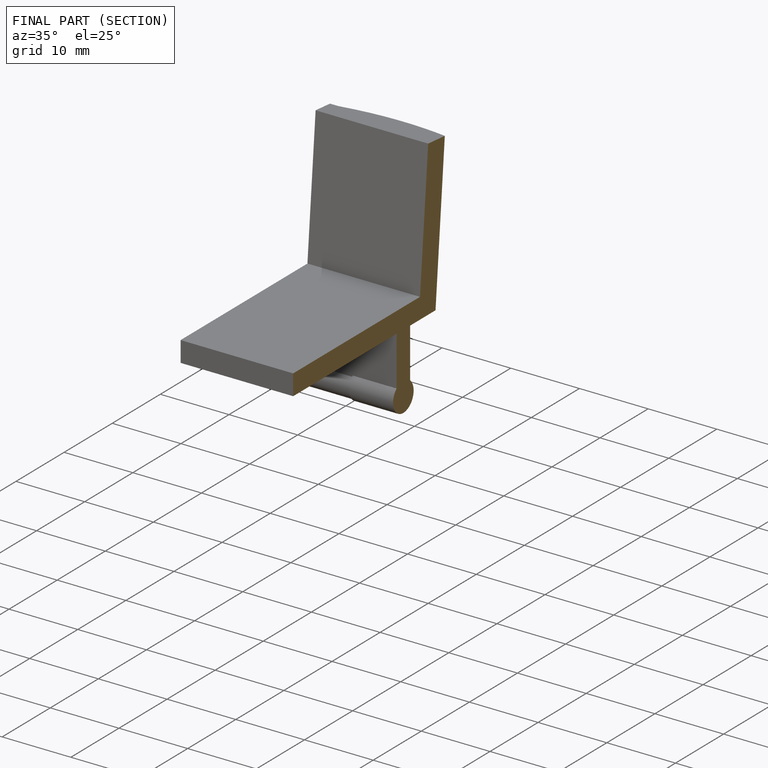
[diagram: finished part — half-section view (interior)]
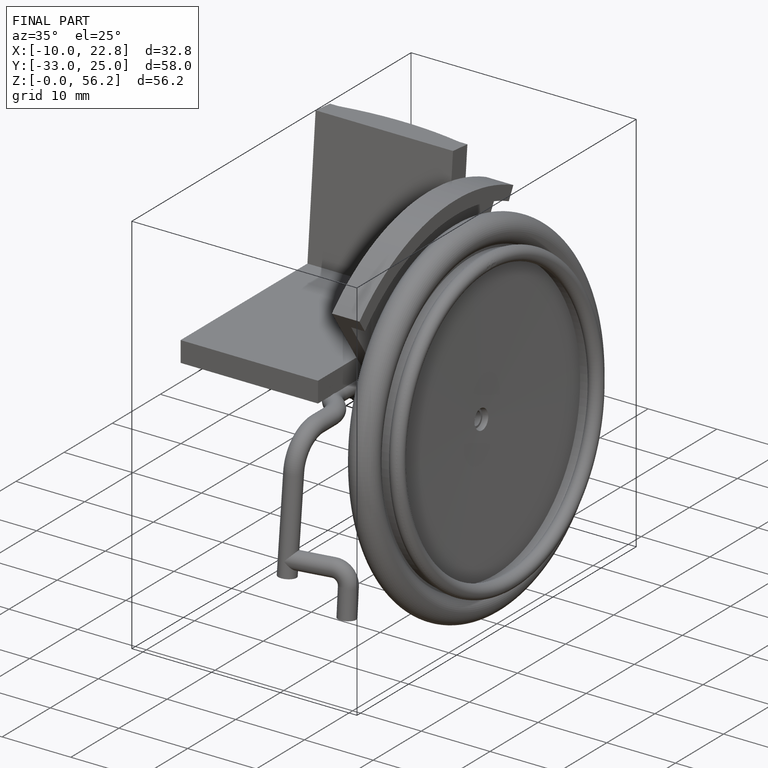
[diagram: finished part — iso view with bounding-box wireframe]
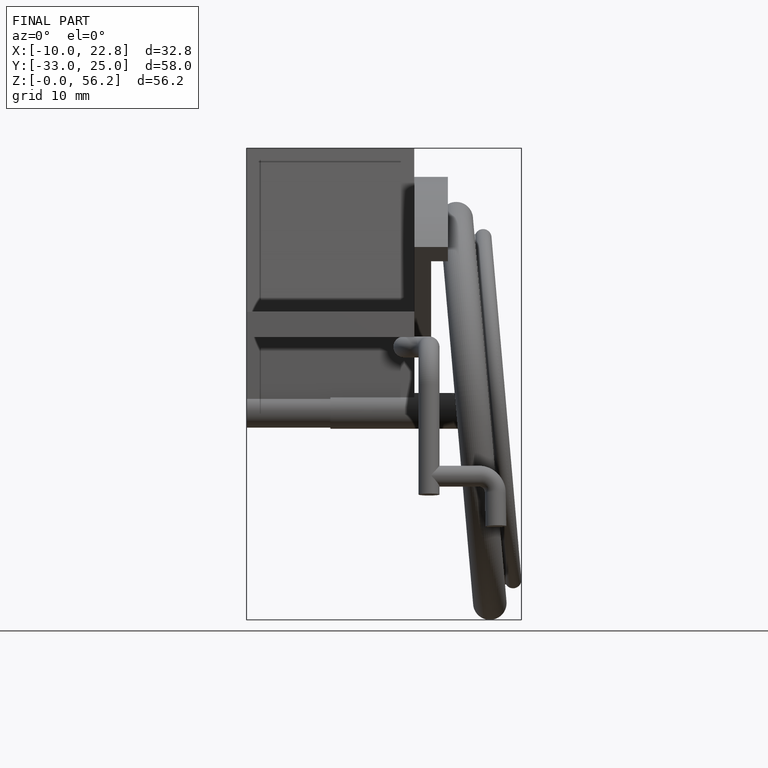
[diagram: finished part — front view with bounding-box wireframe]
